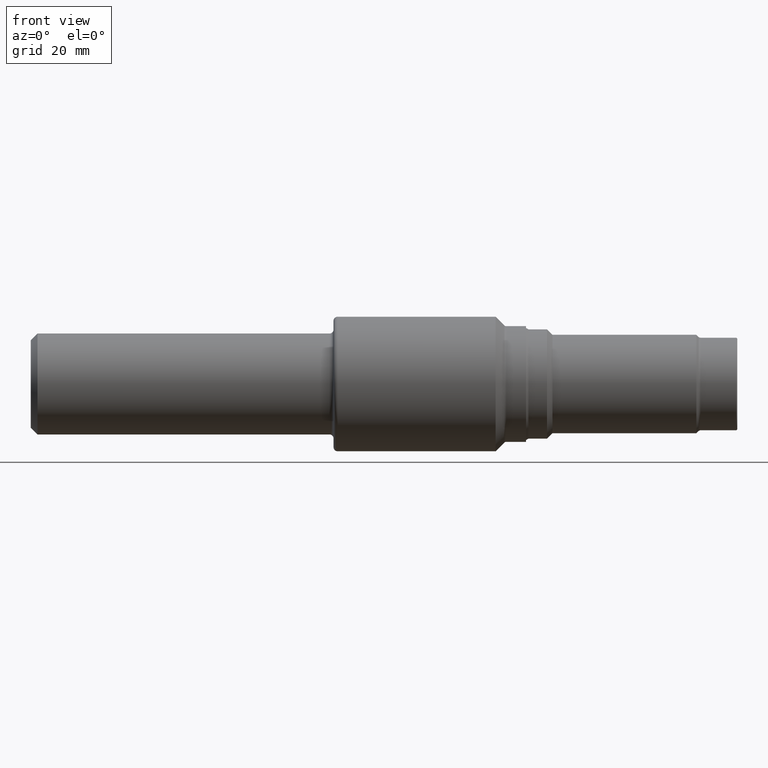
[diagram: clean part render]
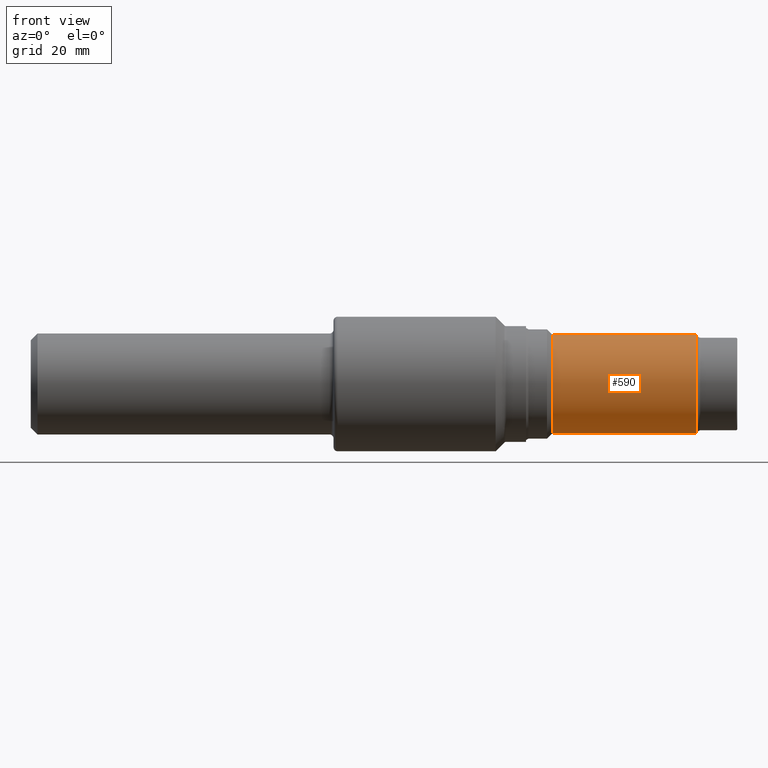
[diagram: same view with one face highlighted and labeled with its STEP entity id]
A machine part, front view. The second image highlights one B-rep face of the part: STEP entity #590.
In plain terms, the highlighted cylindrical surface (partial cylindrical patch) has radius 9.2964 mm, axis along (-1, -0, -0).
Its self-contained STEP definition (entity closure, byte-faithful):
#57 = ORIENTED_EDGE ( 'NONE', *, *, #64, .F. ) ;
#64 = EDGE_CURVE ( 'NONE', #883, #172, #102, .T. ) ;
#86 = AXIS2_PLACEMENT_3D ( 'NONE', #1029, #557, #1022 ) ;
#102 = CIRCLE ( 'NONE', #86, 0.3659999999999999920 ) ;
#163 = CARTESIAN_POINT ( 'NONE',  ( 0.000000000000000000, 4.482207284879313290E-17, -0.3659999999999999920 ) ) ;
#172 = VERTEX_POINT ( 'NONE', #899 ) ;
#175 = CARTESIAN_POINT ( 'NONE',  ( 4.946500000000000341, 0.000000000000000000, 0.3659999999999999920 ) ) ;
#229 = LINE ( 'NONE', #163, #870 ) ;
#328 = DIRECTION ( 'NONE',  ( -1.000000000000000000, -0.000000000000000000, -0.000000000000000000 ) ) ;
#338 = CARTESIAN_POINT ( 'NONE',  ( 0.000000000000000000, 0.000000000000000000, 0.000000000000000000 ) ) ;
#441 = EDGE_CURVE ( 'NONE', #960, #542, #587, .T. ) ;
#476 = CARTESIAN_POINT ( 'NONE',  ( 4.946500000000000341, 0.000000000000000000, 0.000000000000000000 ) ) ;
#492 = DIRECTION ( 'NONE',  ( -1.000000000000000000, -0.000000000000000000, -0.000000000000000000 ) ) ;
#510 = FACE_OUTER_BOUND ( 'NONE', #1003, .T. ) ;
#522 = CYLINDRICAL_SURFACE ( 'NONE', #871, 0.3659999999999999920 ) ;
#542 = VERTEX_POINT ( 'NONE', #175 ) ;
#557 = DIRECTION ( 'NONE',  ( -1.000000000000000000, -0.000000000000000000, -0.000000000000000000 ) ) ;
#587 = CIRCLE ( 'NONE', #703, 0.3659999999999999920 ) ;
#590 = ADVANCED_FACE ( 'NONE', ( #510 ), #522, .T. ) ;
#594 = DIRECTION ( 'NONE',  ( 0.000000000000000000, 0.000000000000000000, 1.000000000000000000 ) ) ;
#623 = ORIENTED_EDGE ( 'NONE', *, *, #866, .T. ) ;
#634 = CARTESIAN_POINT ( 'NONE',  ( 4.946500000000000341, 4.482207284879313290E-17, -0.3659999999999999920 ) ) ;
#666 = DIRECTION ( 'NONE',  ( -1.000000000000000000, -0.000000000000000000, -0.000000000000000000 ) ) ;
#685 = VECTOR ( 'NONE', #328, 39.37007874015748143 ) ;
#703 = AXIS2_PLACEMENT_3D ( 'NONE', #476, #885, #803 ) ;
#728 = CARTESIAN_POINT ( 'NONE',  ( 3.876900000000002233, 4.482207284879313290E-17, -0.3659999999999999920 ) ) ;
#801 = CARTESIAN_POINT ( 'NONE',  ( 0.000000000000000000, 0.000000000000000000, 0.3659999999999999920 ) ) ;
#803 = DIRECTION ( 'NONE',  ( 0.000000000000000000, 0.000000000000000000, 1.000000000000000000 ) ) ;
#846 = EDGE_CURVE ( 'NONE', #960, #883, #229, .T. ) ;
#849 = ORIENTED_EDGE ( 'NONE', *, *, #441, .T. ) ;
#866 = EDGE_CURVE ( 'NONE', #542, #172, #1042, .T. ) ;
#870 = VECTOR ( 'NONE', #492, 39.37007874015748143 ) ;
#871 = AXIS2_PLACEMENT_3D ( 'NONE', #338, #666, #594 ) ;
#883 = VERTEX_POINT ( 'NONE', #728 ) ;
#885 = DIRECTION ( 'NONE',  ( -1.000000000000000000, -0.000000000000000000, -0.000000000000000000 ) ) ;
#899 = CARTESIAN_POINT ( 'NONE',  ( 3.876900000000002233, 0.000000000000000000, 0.3659999999999999920 ) ) ;
#919 = ORIENTED_EDGE ( 'NONE', *, *, #846, .F. ) ;
#960 = VERTEX_POINT ( 'NONE', #634 ) ;
#1003 = EDGE_LOOP ( 'NONE', ( #919, #849, #623, #57 ) ) ;
#1022 = DIRECTION ( 'NONE',  ( 0.000000000000000000, 0.000000000000000000, 1.000000000000000000 ) ) ;
#1029 = CARTESIAN_POINT ( 'NONE',  ( 3.876900000000002233, 0.000000000000000000, 0.000000000000000000 ) ) ;
#1042 = LINE ( 'NONE', #801, #685 ) ;